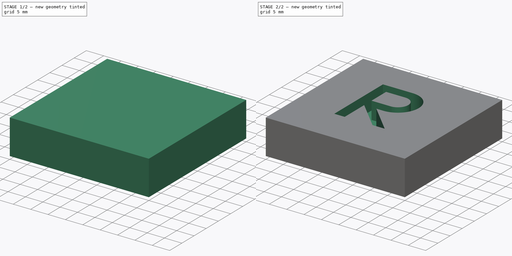
[diagram: build sequence overview — one tinted view per stage of 2, left to right]
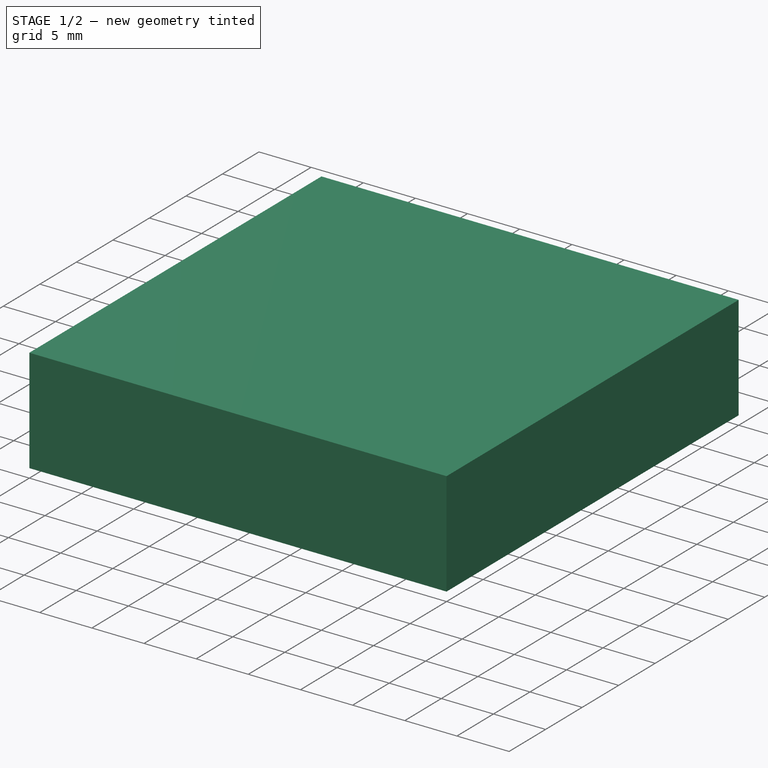
[diagram: stage 1 of 2 — iso view after this stage's code; geometry added in this stage tinted green]
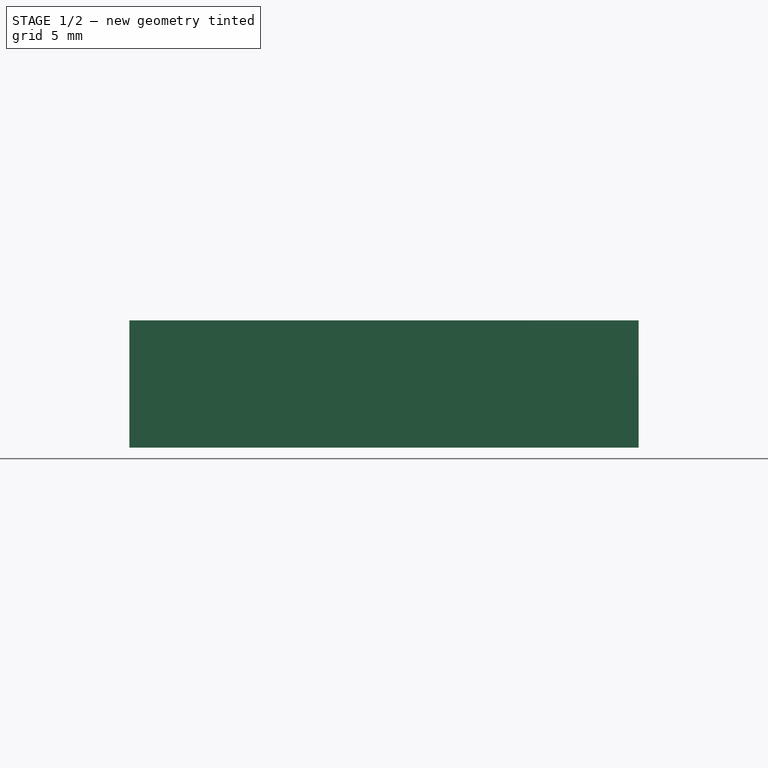
[diagram: stage 1 of 2 — front view after this stage's code; geometry added in this stage tinted green]
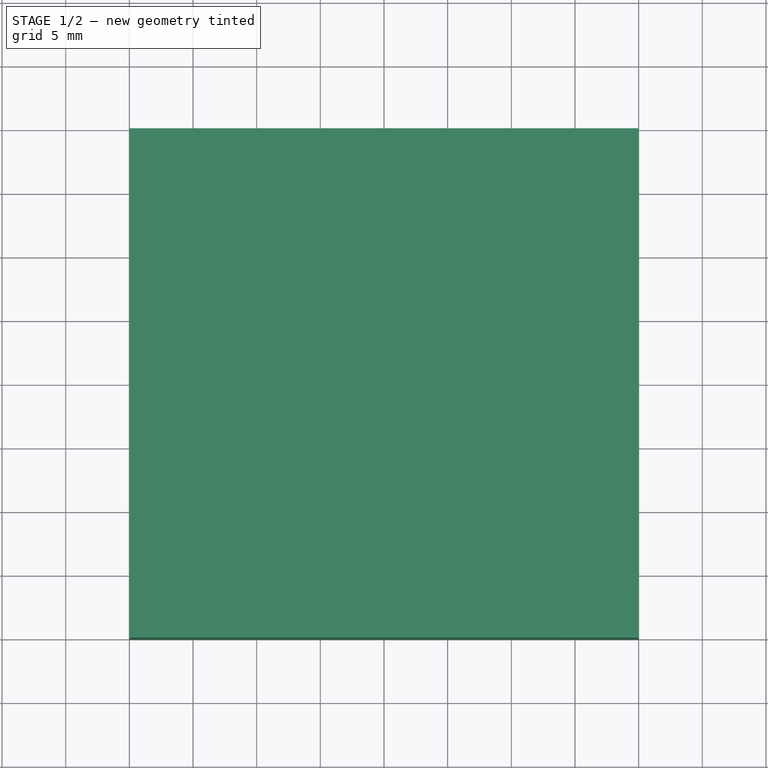
[diagram: stage 1 of 2 — top view after this stage's code; geometry added in this stage tinted green]
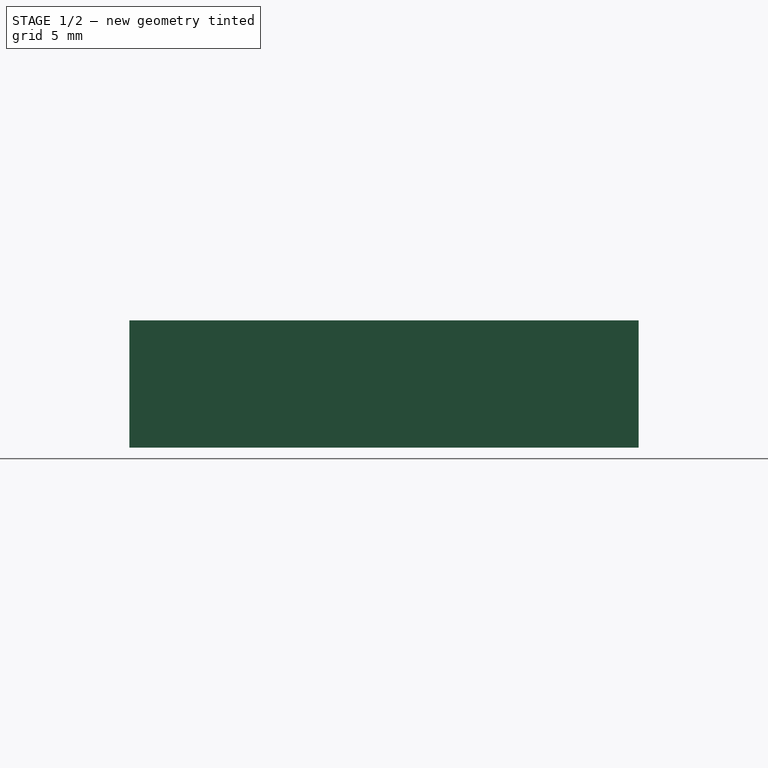
[diagram: stage 1 of 2 — right view after this stage's code; geometry added in this stage tinted green]
FCSTD DOCUMENT  (FreeCAD 0.20R25065 (Git))
Label: LettreR
License: All rights reserved
LicenseURL: http://en.wikipedia.org/wiki/All_rights_reserved
objects: Sketcher::SketchObject×2, PartDesign::Pad×1, PartDesign::Pocket×1, PartDesign::Body×1
note: 7 computed .brp shape members not serialized (recipe doc carries the construction recipe); baked Part::Feature solids carry a one-line shape summary decoded from their .brp

FEATURE [Sketcher::SketchObject] Sketch
  FullyConstrained = true
  MapMode = 5
  Support = -> [XY_Plane]
  sketch-geometry (4):
    g0: LineSegment StartX=-20 StartY=20 StartZ=0 EndX=20 EndY=20 EndZ=0
    g1: LineSegment StartX=20 StartY=20 StartZ=0 EndX=20 EndY=-20 EndZ=0
    g2: LineSegment StartX=20 StartY=-20 StartZ=0 EndX=-20 EndY=-20 EndZ=0
    g3: LineSegment StartX=-20 StartY=-20 StartZ=0 EndX=-20 EndY=20 EndZ=0
  constraints (10):
    c: Coincident(g0,g1)
    c: Coincident(g1,g2)
    c: Coincident(g2,g3)
    c: Coincident(g3,g0)
    c: Horizontal(g2)
    c: Vertical(g3)
    c: DistanceX(g0,g0) = 40
    c: DistanceY(g1,g1) = 40
    c: Symmetric(g0,g1,g-1)
    c: Symmetric(g0,g0,g-2)
FEATURE [PartDesign::Pad] Pad
  Direction = (0,0,1)
  Length = 10
  Length2 = 100
  Profile = -> Sketch
  Type = 0
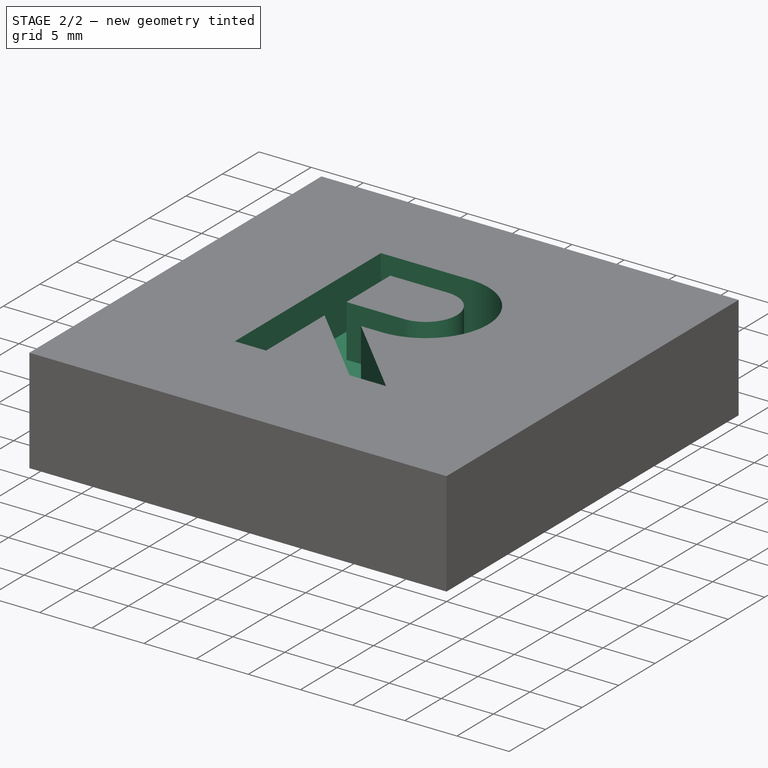
[diagram: stage 2 of 2 — iso view after this stage's code; geometry added in this stage tinted green]
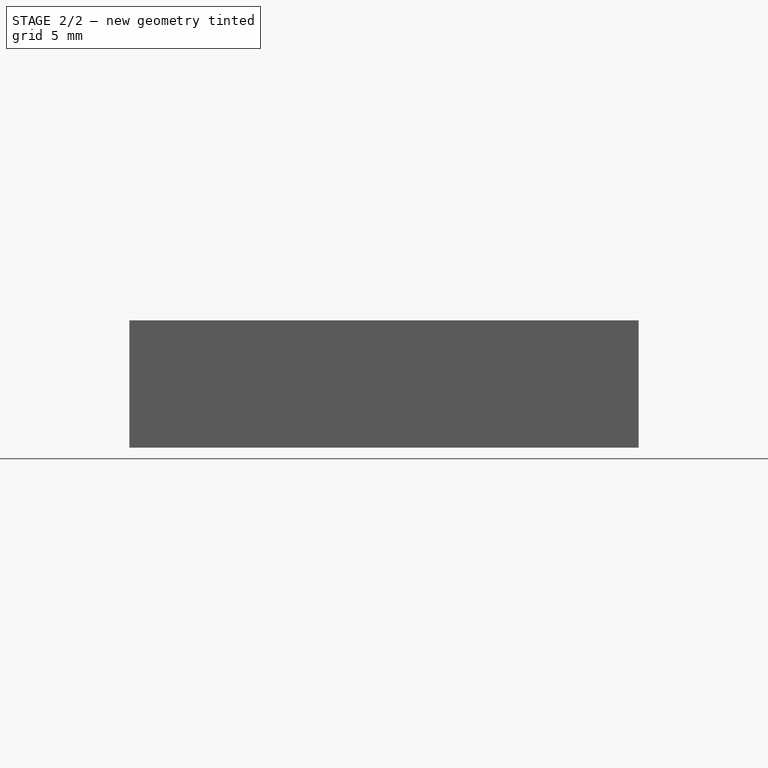
[diagram: stage 2 of 2 — front view after this stage's code; geometry added in this stage tinted green]
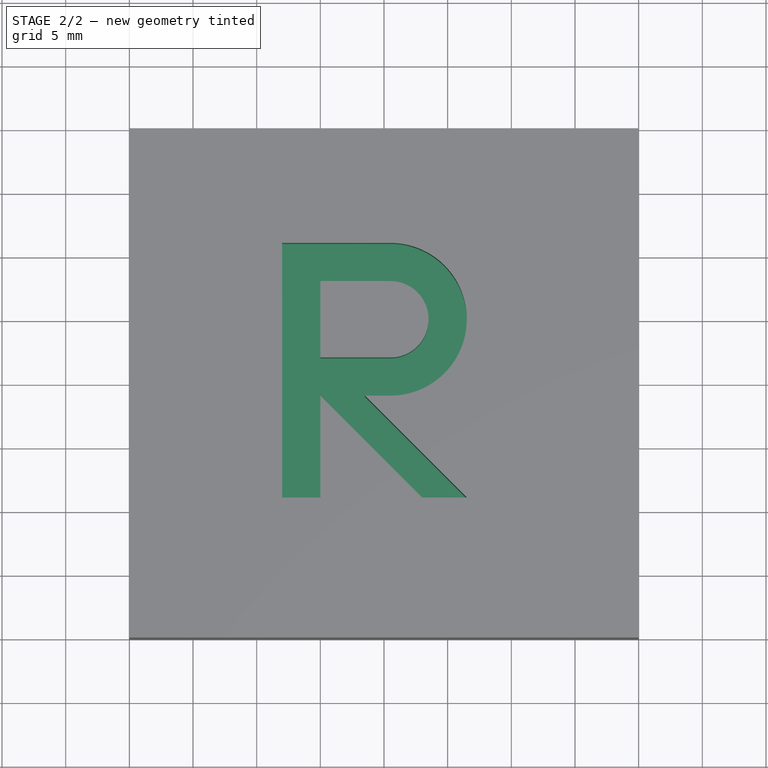
[diagram: stage 2 of 2 — top view after this stage's code; geometry added in this stage tinted green]
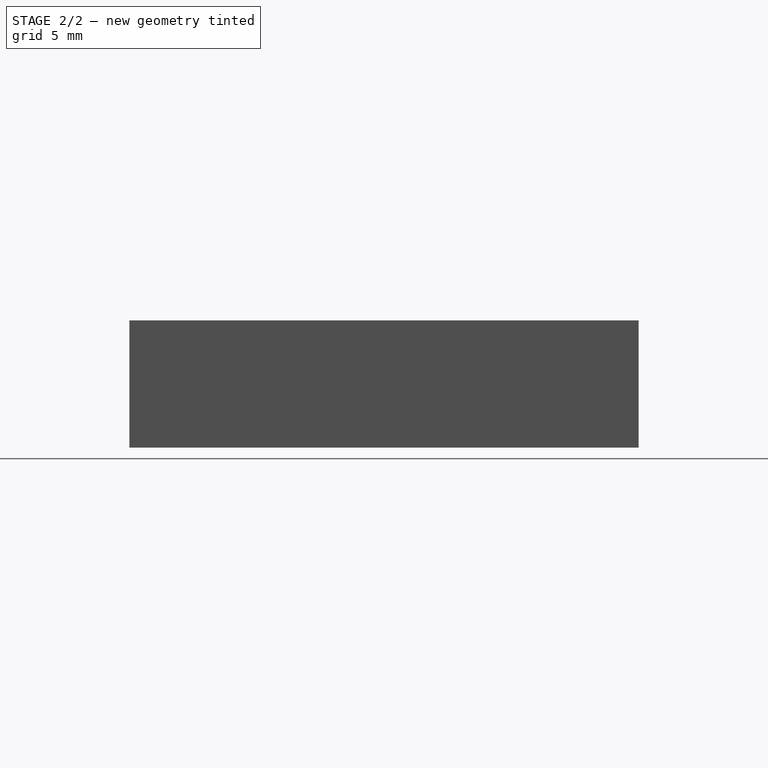
[diagram: stage 2 of 2 — right view after this stage's code; geometry added in this stage tinted green]
FEATURE [Sketcher::SketchObject] Sketch001
  FullyConstrained = false
  MapMode = 5
  Placement = pos=(0,0,10) rot=(0,0,1;0rad)
  Support = -> [Pad]
  sketch-geometry (15):
    g0: LineSegment StartX=-8 StartY=-9 StartZ=0 EndX=-8 EndY=11 EndZ=0
    g1: LineSegment StartX=0.5 StartY=11 StartZ=0 EndX=-8 EndY=11 EndZ=0
    g2: LineSegment StartX=-8 StartY=-9 StartZ=0 EndX=-5 EndY=-9 EndZ=0
    g3: LineSegment StartX=-5 StartY=-9 StartZ=0 EndX=-5 EndY=-1 EndZ=0
    g4: LineSegment StartX=-5 StartY=-1 StartZ=0 EndX=3 EndY=-9 EndZ=0
    g5: LineSegment StartX=3 StartY=-9 StartZ=0 EndX=6.5 EndY=-9 EndZ=0
    g6: LineSegment StartX=6.5 StartY=-9 StartZ=0 EndX=-1.5 EndY=-1 EndZ=0
    g7: LineSegment StartX=-1.5 StartY=-1 StartZ=0 EndX=0.5 EndY=-1 EndZ=0
    g8: ArcOfCircle CenterX=0.5 CenterY=5 CenterZ=0 NormalX=0 NormalY=0 NormalZ=1 AngleXU=0 Radius=6 StartAngle=4.71239 EndAngle=7.85398
    g9: ArcOfCircle CenterX=0.5 CenterY=5 CenterZ=0 NormalX=0 NormalY=0 NormalZ=1 AngleXU=0 Radius=3 StartAngle=4.71239 EndAngle=7.85398
    g10: LineSegment StartX=0.5 StartY=8 StartZ=0 EndX=-5 EndY=8 EndZ=0
    g11: LineSegment StartX=-5 StartY=8 StartZ=0 EndX=-5 EndY=2 EndZ=0
    g12: LineSegment StartX=-5 StartY=2 StartZ=0 EndX=0.5 EndY=2 EndZ=0
    g13: LineSegment StartX=2.40505 StartY=5 StartZ=0 EndX=11.6362 EndY=5 EndZ=0
    g14: LineSegment StartX=6.5 StartY=3.44736 StartZ=0 EndX=6.5 EndY=-8.26797 EndZ=0
  constraints (41):
    c: Vertical(g0)
    c: Coincident(g1,g0)
    c: Horizontal(g1)
    c: Coincident(g2,g0)
    c: Coincident(g3,g2)
    c: Vertical(g3)
    c: Coincident(g4,g3)
    c: Coincident(g5,g4)
    c: Coincident(g6,g5)
    c: Coincident(g7,g6)
    c: Horizontal(g7)
    c: Coincident(g8,g1)
    c: Coincident(g9,g8)
    c: Horizontal(g10)
    c: Coincident(g11,g10)
    c: Vertical(g11)
    c: Coincident(g12,g11)
    c: Horizontal(g12)
    c: Radius(g8) = 6
    c: Radius(g9) = 3
    c: Horizontal(g2)
    c: Horizontal(g5)
    c: Horizontal(g13)
    c: Symmetric(g9,g9,g13)
    c: Coincident(g10,g9)
    c: DistanceX(g0,g-1) = 8
    c: DistanceX(g2,g2) = 3
    c: Parallel(g6,g4)
    c: PointOnObject(g3,g11)
    c: PointOnObject(g3,g7)
    c: PointOnObject(g4,g2)
    c: DistanceY(g0,g-1) = 9
    c: DistanceY(g0,g8) = 14
    c: Tangent(g12,g9) = -1.5708
    c: Symmetric(g7,g1,g13)
    c: Tangent(g7,g8) = -1.5708
    c: Angle(g3,g4) = 0.785398
    c: Vertical(g14)
    c: PointOnObject(g5,g14)
    c: Tangent(g14,g8)
    c: DistanceX(g0,g8) = 8.5
FEATURE [PartDesign::Pocket] Pocket
  BaseFeature = -> Pad
  Length = 5
  Length2 = 100
  Profile = -> Sketch001
  Type = 0
FEATURE [PartDesign::Body] Body  label="R"
  Group = -> [Sketch,Pad,Sketch001,Pocket]
  Origin = -> Origin
  Tip = -> Pocket
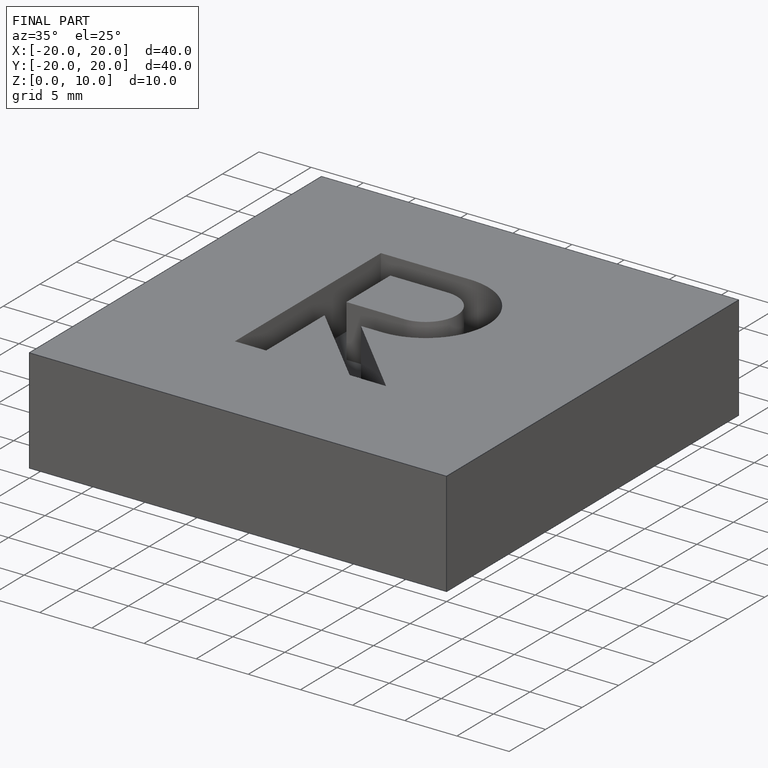
[diagram: finished part — iso view with bounding-box wireframe]
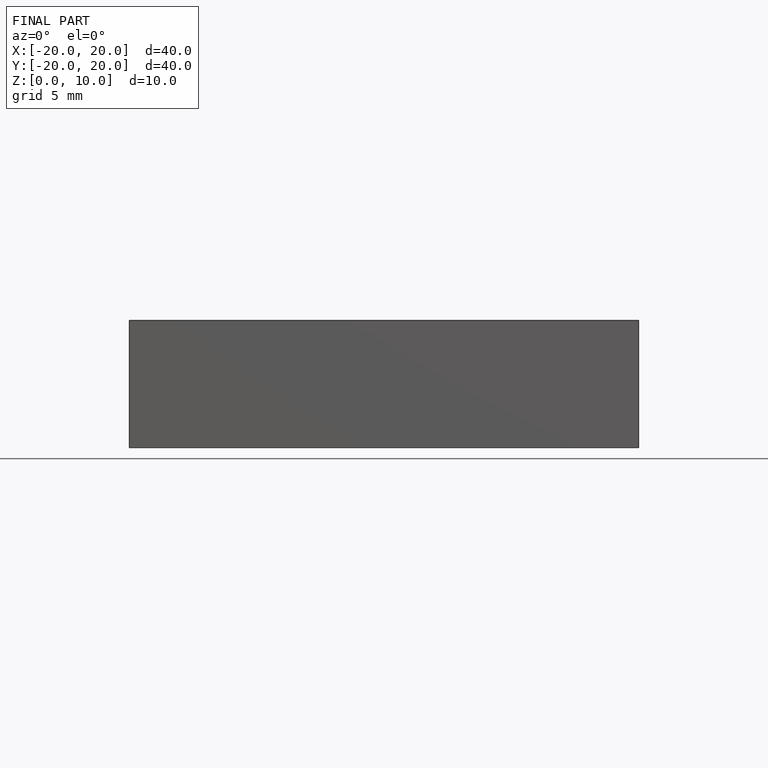
[diagram: finished part — front view with bounding-box wireframe]
